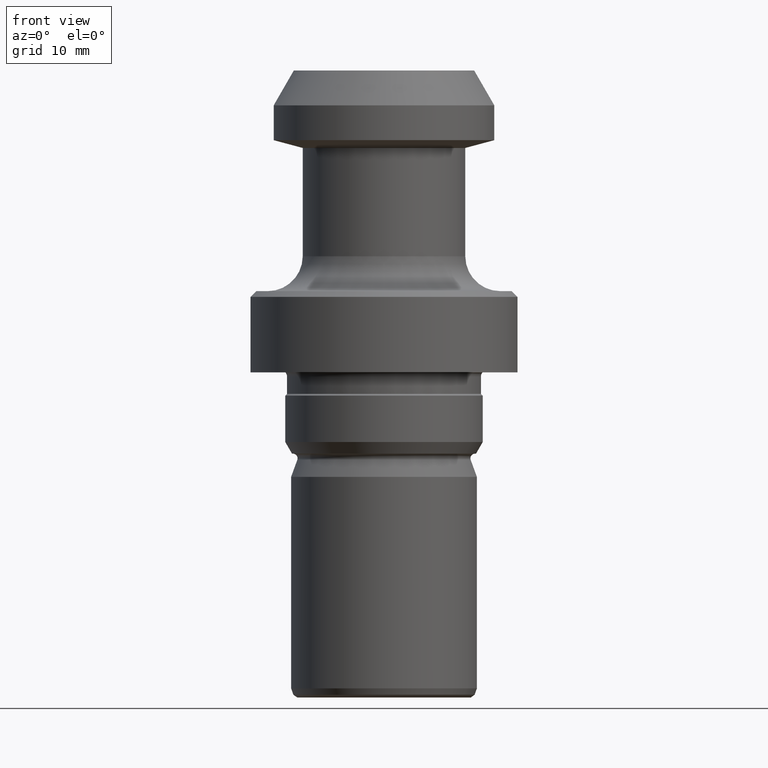
[diagram: clean part render]
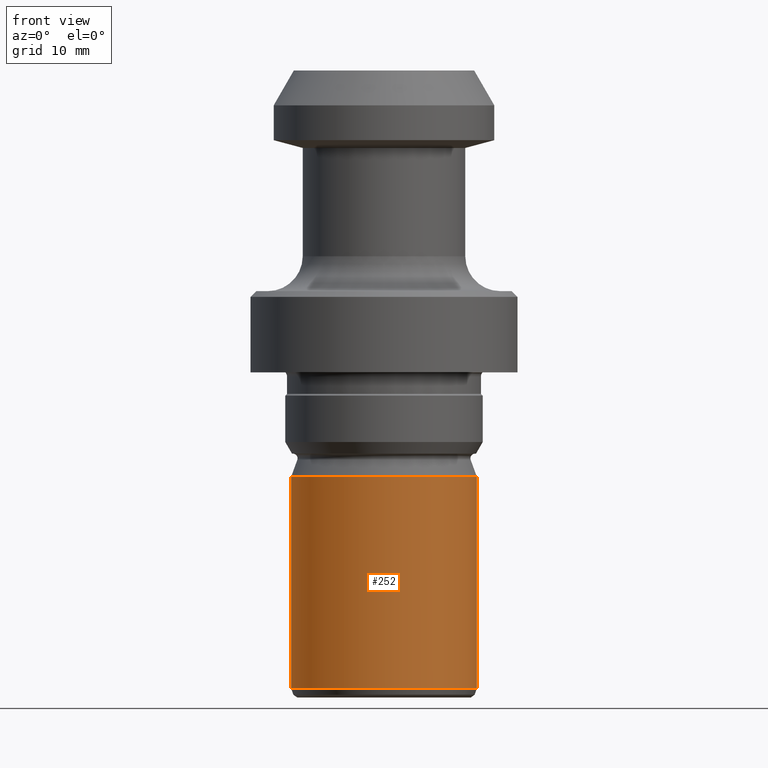
[diagram: same view with one face highlighted and labeled with its STEP entity id]
A machine part, front view. The second image highlights one B-rep face of the part: STEP entity #252.
In plain terms, the highlighted cylindrical surface (partial cylindrical patch) has radius 8 mm, axis along (-0, -0, 1).
Its self-contained STEP definition (entity closure, byte-faithful):
#26 = AXIS2_PLACEMENT_3D ( 'NONE', #1133, #595, #51 ) ;
#51 = DIRECTION ( 'NONE',  ( 1.000000000000000000, 0.0000000000000000000, 0.0000000000000000000 ) ) ;
#106 = CARTESIAN_POINT ( 'NONE',  ( -8.000000000000000000, 9.797174393178825700E-016, -35.00000000000000000 ) ) ;
#228 = CIRCLE ( 'NONE', #630, 8.000000000000000000 ) ;
#236 = CARTESIAN_POINT ( 'NONE',  ( 0.0000000000000000000, 0.0000000000000000000, -35.00000000000000000 ) ) ;
#240 = VERTEX_POINT ( 'NONE', #971 ) ;
#252 = ADVANCED_FACE ( 'NONE', ( #881 ), #654, .T. ) ;
#262 = EDGE_CURVE ( 'NONE', #1002, #434, #409, .T. ) ;
#289 = CIRCLE ( 'NONE', #26, 8.000000000000000000 ) ;
#301 = LINE ( 'NONE', #313, #758 ) ;
#313 = CARTESIAN_POINT ( 'NONE',  ( 8.000000000000000000, 0.0000000000000000000, 0.0000000000000000000 ) ) ;
#327 = DIRECTION ( 'NONE',  ( 1.000000000000000000, 0.0000000000000000000, 0.0000000000000000000 ) ) ;
#404 = DIRECTION ( 'NONE',  ( -0.0000000000000000000, -0.0000000000000000000, 1.000000000000000000 ) ) ;
#409 = LINE ( 'NONE', #884, #683 ) ;
#427 = DIRECTION ( 'NONE',  ( -0.0000000000000000000, -0.0000000000000000000, 1.000000000000000000 ) ) ;
#434 = VERTEX_POINT ( 'NONE', #106 ) ;
#446 = CARTESIAN_POINT ( 'NONE',  ( 0.0000000000000000000, 0.0000000000000000000, 0.0000000000000000000 ) ) ;
#474 = ORIENTED_EDGE ( 'NONE', *, *, #895, .T. ) ;
#562 = CARTESIAN_POINT ( 'NONE',  ( 8.000000000000000000, 0.0000000000000000000, -35.00000000000000000 ) ) ;
#588 = ORIENTED_EDGE ( 'NONE', *, *, #262, .F. ) ;
#595 = DIRECTION ( 'NONE',  ( -0.0000000000000000000, -0.0000000000000000000, 1.000000000000000000 ) ) ;
#630 = AXIS2_PLACEMENT_3D ( 'NONE', #236, #849, #327 ) ;
#654 = CYLINDRICAL_SURFACE ( 'NONE', #952, 8.000000000000000000 ) ;
#663 = VERTEX_POINT ( 'NONE', #562 ) ;
#683 = VECTOR ( 'NONE', #688, 1000.000000000000000 ) ;
#688 = DIRECTION ( 'NONE',  ( -0.0000000000000000000, -0.0000000000000000000, 1.000000000000000000 ) ) ;
#758 = VECTOR ( 'NONE', #404, 1000.000000000000000 ) ;
#761 = CARTESIAN_POINT ( 'NONE',  ( -8.000000000000000000, 9.797174393178825700E-016, -53.21764467764698000 ) ) ;
#849 = DIRECTION ( 'NONE',  ( -0.0000000000000000000, -0.0000000000000000000, 1.000000000000000000 ) ) ;
#881 = FACE_OUTER_BOUND ( 'NONE', #1075, .T. ) ;
#884 = CARTESIAN_POINT ( 'NONE',  ( -8.000000000000000000, 9.797174393178825700E-016, 0.0000000000000000000 ) ) ;
#895 = EDGE_CURVE ( 'NONE', #240, #663, #301, .T. ) ;
#952 = AXIS2_PLACEMENT_3D ( 'NONE', #446, #427, #1060 ) ;
#971 = CARTESIAN_POINT ( 'NONE',  ( 8.000000000000000000, 0.0000000000000000000, -53.21764467764698000 ) ) ;
#978 = EDGE_CURVE ( 'NONE', #1002, #240, #289, .T. ) ;
#1002 = VERTEX_POINT ( 'NONE', #761 ) ;
#1017 = ORIENTED_EDGE ( 'NONE', *, *, #1037, .F. ) ;
#1037 = EDGE_CURVE ( 'NONE', #434, #663, #228, .T. ) ;
#1060 = DIRECTION ( 'NONE',  ( 1.000000000000000000, 0.0000000000000000000, 0.0000000000000000000 ) ) ;
#1069 = ORIENTED_EDGE ( 'NONE', *, *, #978, .T. ) ;
#1075 = EDGE_LOOP ( 'NONE', ( #588, #1069, #474, #1017 ) ) ;
#1133 = CARTESIAN_POINT ( 'NONE',  ( 0.0000000000000000000, 0.0000000000000000000, -53.21764467764698000 ) ) ;